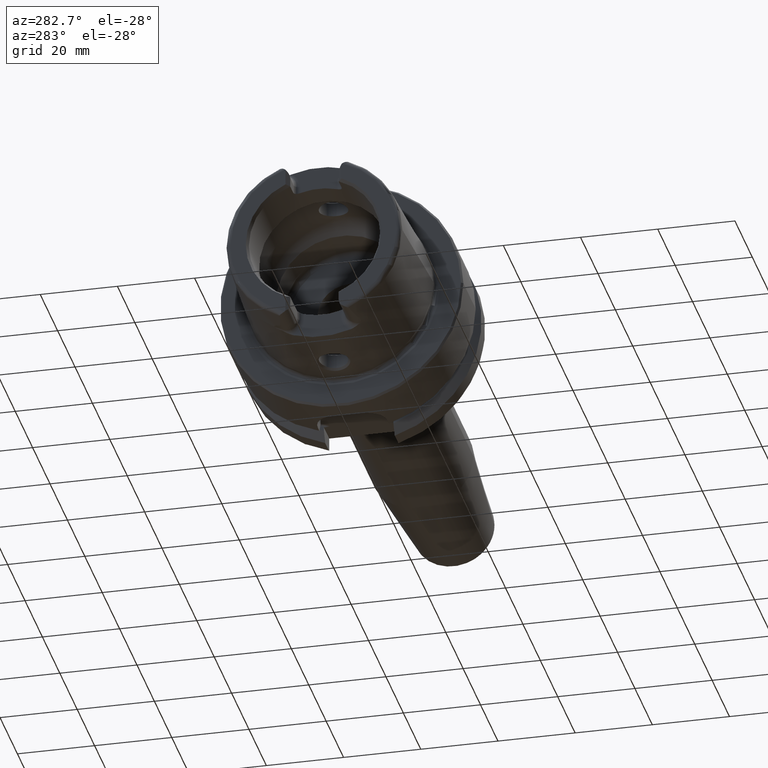
[diagram: clean part render]
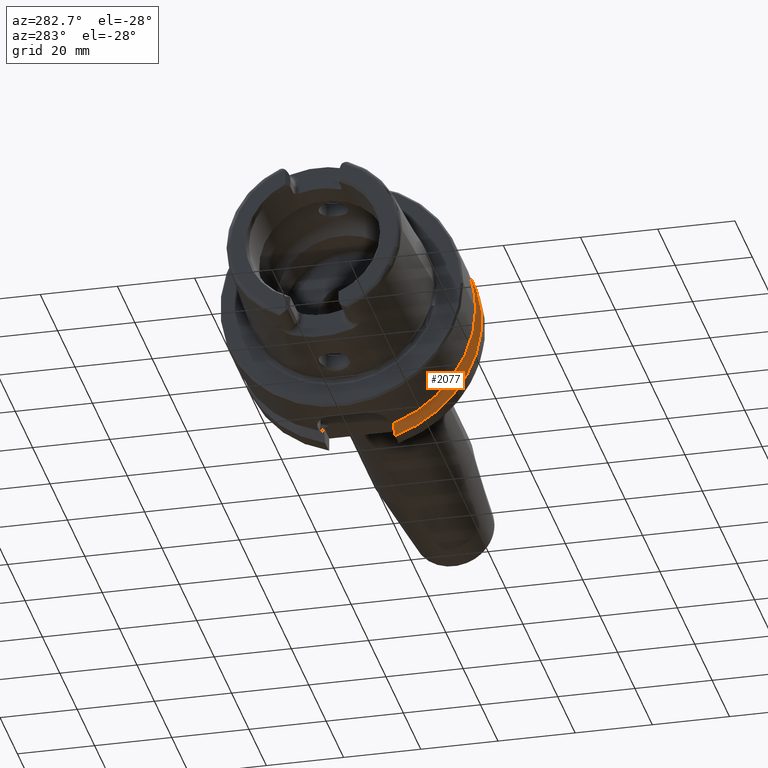
[diagram: same view with one face highlighted and labeled with its STEP entity id]
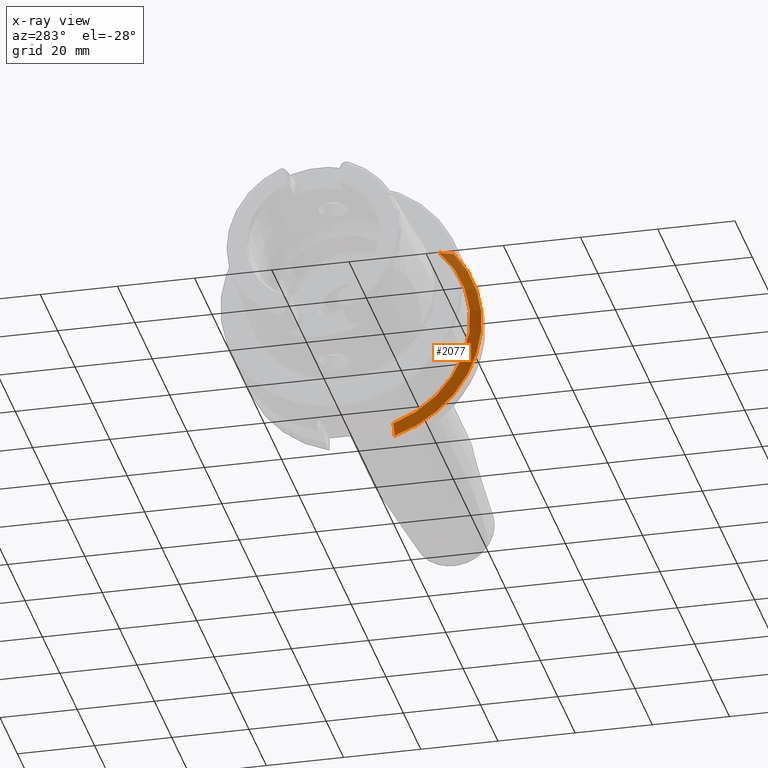
[diagram: x-ray of the same camera — body ghosted, the highlighted face saturated]
A machine part, auxiliary view. The second image highlights one B-rep face of the part: STEP entity #2077.
The next image is the same camera in x-ray: the body ghosted, the highlighted face saturated — about 11% of this face is hidden behind the body in this view.
In plain terms, the highlighted conical surface has half-angle 60 deg.
Its self-contained STEP definition (entity closure, byte-faithful):
#17=(
BOUNDED_CURVE()
B_SPLINE_CURVE(2,(#3894,#3895,#3896),.UNSPECIFIED.,.F.,.F.)
B_SPLINE_CURVE_WITH_KNOTS((3,3),(0.,0.378858277140999),.UNSPECIFIED.)
CURVE()
GEOMETRIC_REPRESENTATION_ITEM()
RATIONAL_B_SPLINE_CURVE((1.,1.00166199353854,1.))
REPRESENTATION_ITEM('')
);
#23=(
BOUNDED_CURVE()
B_SPLINE_CURVE(2,(#4034,#4035,#4036),.UNSPECIFIED.,.F.,.F.)
B_SPLINE_CURVE_WITH_KNOTS((3,3),(0.,0.311314369989023),.UNSPECIFIED.)
CURVE()
GEOMETRIC_REPRESENTATION_ITEM()
RATIONAL_B_SPLINE_CURVE((1.,1.00102053193598,1.))
REPRESENTATION_ITEM('')
);
#284=FACE_OUTER_BOUND('',#413,.T.);
#413=EDGE_LOOP('',(#1724,#1725,#1726,#1727));
#751=CIRCLE('',#2269,28.8975952641916);
#765=CIRCLE('',#2302,31.5);
#925=VERTEX_POINT('',#3890);
#927=VERTEX_POINT('',#3893);
#949=VERTEX_POINT('',#3990);
#954=VERTEX_POINT('',#4032);
#1170=EDGE_CURVE('',#927,#925,#17,.T.);
#1200=EDGE_CURVE('',#925,#949,#751,.T.);
#1210=EDGE_CURVE('',#949,#954,#23,.T.);
#1257=EDGE_CURVE('',#927,#954,#765,.T.);
#1724=ORIENTED_EDGE('',*,*,#1170,.T.);
#1725=ORIENTED_EDGE('',*,*,#1200,.T.);
#1726=ORIENTED_EDGE('',*,*,#1210,.T.);
#1727=ORIENTED_EDGE('',*,*,#1257,.F.);
#1999=CONICAL_SURFACE('',#2309,30.1987976320958,1.0471975511966);
#2077=ADVANCED_FACE('',(#284),#1999,.T.);
#2269=AXIS2_PLACEMENT_3D('',#3992,#2710,#2711);
#2302=AXIS2_PLACEMENT_3D('',#4244,#2796,#2797);
#2309=AXIS2_PLACEMENT_3D('',#4259,#2812,#2813);
#2710=DIRECTION('center_axis',(1.,0.,0.));
#2711=DIRECTION('ref_axis',(0.,0.,-1.));
#2796=DIRECTION('center_axis',(1.,0.,0.));
#2797=DIRECTION('ref_axis',(0.,0.,-1.));
#2812=DIRECTION('center_axis',(1.,0.,0.));
#2813=DIRECTION('ref_axis',(0.,-0.966819045705046,-0.255462194584608));
#3890=CARTESIAN_POINT('',(19.875,-20.8583559288126,20.));
#3893=CARTESIAN_POINT('',(21.3774990747593,-24.3361870472759,20.));
#3894=CARTESIAN_POINT('Ctrl Pts',(21.3774990747593,-24.3361870472759,20.));
#3895=CARTESIAN_POINT('Ctrl Pts',(20.5684390397668,-22.5223452916166,20.));
#3896=CARTESIAN_POINT('Ctrl Pts',(19.875,-20.8583559288126,20.));
#3990=CARTESIAN_POINT('',(19.875,-9.,-27.4603534582684));
#3992=CARTESIAN_POINT('Origin',(19.875,0.,0.));
#4032=CARTESIAN_POINT('',(21.3774990747593,-9.,-30.1869176962472));
#4034=CARTESIAN_POINT('Ctrl Pts',(19.875,-9.,-27.4603534582684));
#4035=CARTESIAN_POINT('Ctrl Pts',(20.5907174110267,-9.,-28.7648946319029));
#4036=CARTESIAN_POINT('Ctrl Pts',(21.3774990747593,-9.,-30.1869176962472));
#4244=CARTESIAN_POINT('Origin',(21.3774990747593,0.,0.));
#4259=CARTESIAN_POINT('Origin',(20.6262495373797,0.,0.));